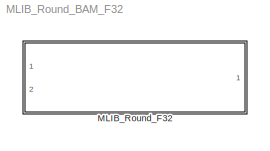
MODEL MLIB_Round_BAM_F32
KIND model
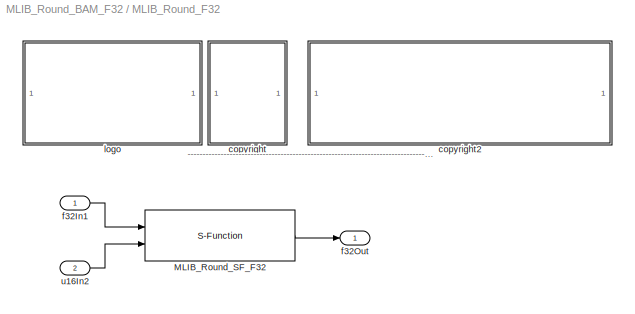
BLOCK [SubSystem] MLIB_Round_F32
  FunctionWithSeparateData = off
  MaskDescription = Bit accurate model of the fuction rounds the first input value for number of digits defined by second parameter and saturate automaticaly. All parameters as well as input and output are 32bit integers.
  MaskDisplay = color('black');port_label('input',1,'f32In1');port_label('input',2,'u16In2');port_label('output',1,'f32Out');color('black');disp('MLIB_Round_F32');color('blue');text(tX,tY, 'BAM', 'horizontalAlignment', 'center');
  MaskHideContents = off
  MaskIconFrame = on
  MaskIconOpaque = on
  MaskIconRotate = none
  MaskIconUnits = pixels
  MaskInitialization = pos = get_param(gcb, 'Position');width = pos(3) - pos(1); height = pos(4) - pos(2);tX=width/2;tY=height*0.9;
  MaskPortRotate = default
  MaskType = MLIB_Round_F32
  MinAlgLoopOccurrences = off
  Opaque = off
  Ports = [2, 1]
  PropExecContextOutsideSubsystem = off
  RTWSystemCode = Auto
  RequestExecContextInheritance = off
BLOCK [S-Function] MLIB_Round_F32/MLIB_Round_SF_F32
  EnableBusSupport = off
  FunctionName = MLIB_Round_SF_F32
  Ports = [2, 1]
BLOCK [SubSystem] MLIB_Round_F32/<copyright redacted>
  FunctionWithSeparateData = off
  MaskDisplay = text(10,90,'FILE:');text(10,75,'DESRIPTION:')text(10,60,'<copyright redacted>
  MaskHideContents = off
  MaskIconFrame = off
  MaskIconOpaque = on
  MaskIconRotate = none
  MaskIconUnits = pixels
  MaskPortRotate = default
  MinAlgLoopOccurrences = off
  Opaque = off
  Ports = []
  PropExecContextOutsideSubsystem = off
  RTWSystemCode = Auto
  RequestExecContextInheritance = off
BLOCK [SubSystem] MLIB_Round_F32/copyright2
  FunctionWithSeparateData = off
  MaskDisplay = text(10,90,'MLIB_Round_BAM_F32.mdl');text(10,75,'Round the first input value.');text(10,60,'Freescale')text(10,45,'0.1');text(10,30,'02-Sep-2011');
  MaskHideContents = off
  MaskIconFrame = off
  MaskIconOpaque = on
  MaskIconRotate = none
  MaskIconUnits = pixels
  MaskPortRotate = default
  MinAlgLoopOccurrences = off
  Opaque = off
  Ports = []
  PropExecContextOutsideSubsystem = off
  RTWSystemCode = Auto
  RequestExecContextInheritance = off
BLOCK [Inport] MLIB_Round_F32/f32In1
  IconDisplay = Port number
  OutDataType = fixdt(1, 16)
  OutScaling = 2^0
BLOCK [Outport] MLIB_Round_F32/f32Out
  IconDisplay = Port number
  OutDataType = fixdt(1, 16)
  OutScaling = 2^0
BLOCK [SubSystem] MLIB_Round_F32/logo
  FunctionWithSeparateData = off
  MaskDisplay = image(imread('logo.jpg'))
  MaskHideContents = off
  MaskIconFrame = off
  MaskIconOpaque = on
  MaskIconRotate = none
  MaskIconUnits = autoscale
  MaskPortRotate = default
  MinAlgLoopOccurrences = off
  Opaque = off
  Ports = []
  PropExecContextOutsideSubsystem = off
  RTWSystemCode = Auto
  RequestExecContextInheritance = off
BLOCK [Inport] MLIB_Round_F32/u16In2
  IconDisplay = Port number
  OutDataType = fixdt(1, 16)
  OutScaling = 2^0
  Port = 2
ANNOTATION MLIB_Round_F32: ---------------------------------------------------------------------------------------------------------------------------------------------------------------------------------------------------
LINE MLIB_Round_F32/MLIB_Round_SF_F32:1 -> MLIB_Round_F32/f32Out:1
LINE MLIB_Round_F32/f32In1:1 -> MLIB_Round_F32/MLIB_Round_SF_F32:1
LINE MLIB_Round_F32/u16In2:1 -> MLIB_Round_F32/MLIB_Round_SF_F32:2
